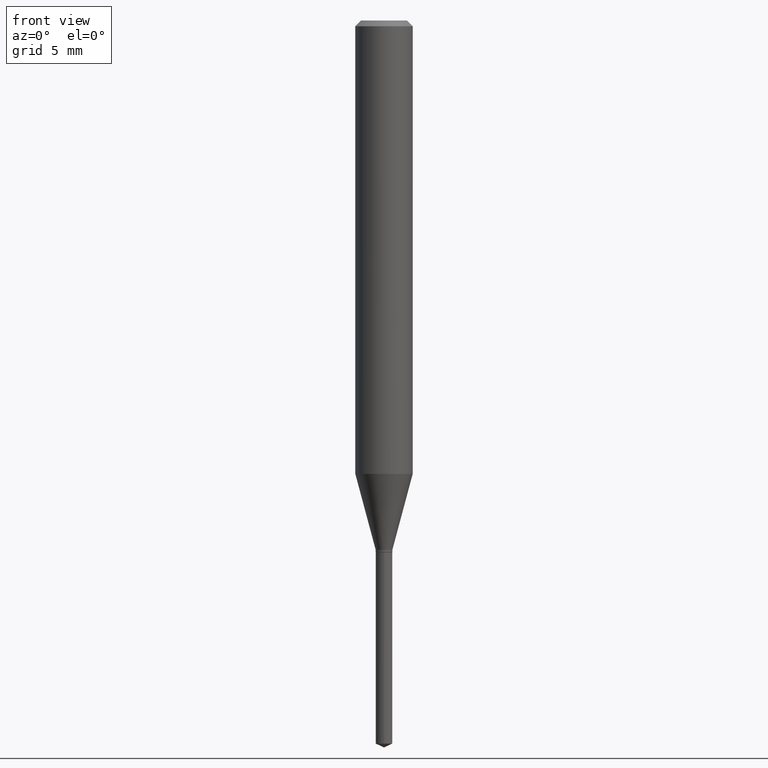
[diagram: clean part render]
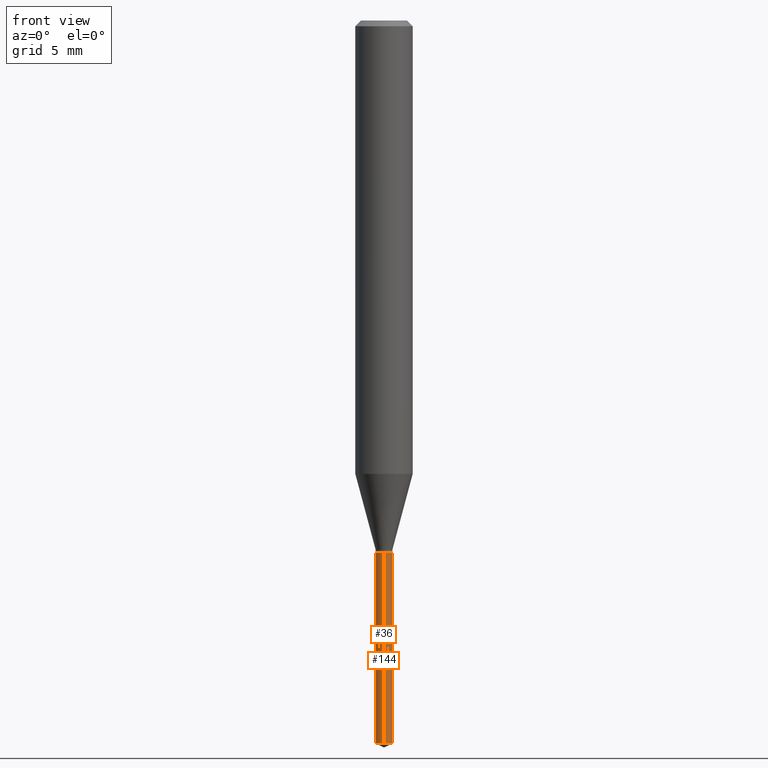
[diagram: same view with one multi-face feature highlighted, each face labeled with its STEP entity id]
A machine part, front view. The highlighted faces form ONE feature: a constant-radius fillet chain: 2 tangent blend faces with common blend radius 0.4356 mm. The faces share edges in the B-rep.
Their STEP definitions:
[1] entity #144 (Cylinder):
#1 = CARTESIAN_POINT ( 'NONE',  ( 1.218580791828935333E-16, 0.01714999999999479788, -1.488102823662641683 ) ) ;
#19 = CARTESIAN_POINT ( 'NONE',  ( 1.218580791828839191E-16, 0.01714999999999617525, -1.094499999999999806 ) ) ;
#27 = LINE ( 'NONE', #195, #379 ) ;
#30 = CIRCLE ( 'NONE', #417, 0.01714999999999999858 ) ;
#51 = ORIENTED_EDGE ( 'NONE', *, *, #216, .F. ) ;
#64 = EDGE_LOOP ( 'NONE', ( #290, #275, #51, #363 ) ) ;
#71 = FACE_OUTER_BOUND ( 'NONE', #64, .T. ) ;
#89 = VERTEX_POINT ( 'NONE', #187 ) ;
#111 = CARTESIAN_POINT ( 'NONE',  ( 2.676565608369631794E-29, -3.821426325363822773E-15, -1.094499999999999806 ) ) ;
#131 = AXIS2_PLACEMENT_3D ( 'NONE', #305, #267, #415 ) ;
#136 = EDGE_CURVE ( 'NONE', #470, #244, #27, .T. ) ;
#139 = AXIS2_PLACEMENT_3D ( 'NONE', #111, #228, #484 ) ;
#144 = ADVANCED_FACE ( 'NONE', ( #71 ), #153, .T. ) ;
#153 = CYLINDRICAL_SURFACE ( 'NONE', #139, 0.01714999999999999858 ) ;
#187 = CARTESIAN_POINT ( 'NONE',  ( 1.218580791828936073E-16, 0.01714999999999617525, -1.094499999999999806 ) ) ;
#195 = CARTESIAN_POINT ( 'NONE',  ( -1.197578099222926869E-16, -0.01715000000000382191, -1.094499999999999806 ) ) ;
#216 = EDGE_CURVE ( 'NONE', #244, #89, #239, .T. ) ;
#228 = DIRECTION ( 'NONE',  ( -2.445460715294871217E-29, 3.491492925458510144E-15, 1.000000000000000000 ) ) ;
#239 = CIRCLE ( 'NONE', #131, 0.01714999999999999858 ) ;
#244 = VERTEX_POINT ( 'NONE', #422 ) ;
#254 = VERTEX_POINT ( 'NONE', #1 ) ;
#256 = LINE ( 'NONE', #19, #319 ) ;
#267 = DIRECTION ( 'NONE',  ( -2.445460715294871217E-29, 3.491492925458510144E-15, 1.000000000000000000 ) ) ;
#275 = ORIENTED_EDGE ( 'NONE', *, *, #423, .T. ) ;
#290 = ORIENTED_EDGE ( 'NONE', *, *, #365, .T. ) ;
#305 = CARTESIAN_POINT ( 'NONE',  ( 2.676565608369631794E-29, -3.821426325363822773E-15, -1.094499999999999806 ) ) ;
#319 = VECTOR ( 'NONE', #399, 39.37007874015748143 ) ;
#339 = DIRECTION ( 'NONE',  ( -2.445460715294871217E-29, 3.491492925458510144E-15, 1.000000000000000000 ) ) ;
#358 = CARTESIAN_POINT ( 'NONE',  ( 3.639105851065756333E-29, -5.195687799622430095E-15, -1.488102823662641683 ) ) ;
#363 = ORIENTED_EDGE ( 'NONE', *, *, #136, .F. ) ;
#365 = EDGE_CURVE ( 'NONE', #470, #254, #30, .T. ) ;
#379 = VECTOR ( 'NONE', #339, 39.37007874015748143 ) ;
#388 = DIRECTION ( 'NONE',  ( -2.445460715294871217E-29, 3.491492925458510144E-15, 1.000000000000000000 ) ) ;
#399 = DIRECTION ( 'NONE',  ( -2.445460715294871217E-29, 3.491492925458510144E-15, 1.000000000000000000 ) ) ;
#415 = DIRECTION ( 'NONE',  ( -6.982962677686266711E-15, -1.000000000000000000, 0.000000000000000000 ) ) ;
#417 = AXIS2_PLACEMENT_3D ( 'NONE', #358, #388, #457 ) ;
#422 = CARTESIAN_POINT ( 'NONE',  ( -1.197578099222926869E-16, -0.01715000000000382191, -1.094499999999999806 ) ) ;
#423 = EDGE_CURVE ( 'NONE', #254, #89, #256, .T. ) ;
#457 = DIRECTION ( 'NONE',  ( -6.982962677686266711E-15, -1.000000000000000000, 0.000000000000000000 ) ) ;
#470 = VERTEX_POINT ( 'NONE', #476 ) ;
#476 = CARTESIAN_POINT ( 'NONE',  ( -1.197578099222830234E-16, -0.01715000000000518887, -1.488102823662641683 ) ) ;
#484 = DIRECTION ( 'NONE',  ( -6.982962677686266711E-15, -1.000000000000000000, 0.000000000000000000 ) ) ;
[2] entity #36 (Cylinder):
#1 = CARTESIAN_POINT ( 'NONE',  ( 1.218580791828935333E-16, 0.01714999999999479788, -1.488102823662641683 ) ) ;
#19 = CARTESIAN_POINT ( 'NONE',  ( 1.218580791828839191E-16, 0.01714999999999617525, -1.094499999999999806 ) ) ;
#22 = CYLINDRICAL_SURFACE ( 'NONE', #237, 0.01714999999999999858 ) ;
#27 = LINE ( 'NONE', #195, #379 ) ;
#28 = EDGE_CURVE ( 'NONE', #254, #470, #449, .T. ) ;
#36 = ADVANCED_FACE ( 'NONE', ( #141 ), #22, .T. ) ;
#37 = DIRECTION ( 'NONE',  ( -2.445460715294871217E-29, 3.491492925458510144E-15, 1.000000000000000000 ) ) ;
#89 = VERTEX_POINT ( 'NONE', #187 ) ;
#99 = DIRECTION ( 'NONE',  ( -2.445460715294871217E-29, 3.491492925458510144E-15, 1.000000000000000000 ) ) ;
#107 = CARTESIAN_POINT ( 'NONE',  ( 2.676565608369631794E-29, -3.821426325363822773E-15, -1.094499999999999806 ) ) ;
#136 = EDGE_CURVE ( 'NONE', #470, #244, #27, .T. ) ;
#141 = FACE_OUTER_BOUND ( 'NONE', #257, .T. ) ;
#174 = CARTESIAN_POINT ( 'NONE',  ( 3.639105851065756333E-29, -5.195687799622430095E-15, -1.488102823662641683 ) ) ;
#183 = DIRECTION ( 'NONE',  ( -6.982962677686266711E-15, -1.000000000000000000, 0.000000000000000000 ) ) ;
#187 = CARTESIAN_POINT ( 'NONE',  ( 1.218580791828936073E-16, 0.01714999999999617525, -1.094499999999999806 ) ) ;
#193 = AXIS2_PLACEMENT_3D ( 'NONE', #236, #37, #381 ) ;
#195 = CARTESIAN_POINT ( 'NONE',  ( -1.197578099222926869E-16, -0.01715000000000382191, -1.094499999999999806 ) ) ;
#219 = DIRECTION ( 'NONE',  ( -6.982962677686266711E-15, -1.000000000000000000, 0.000000000000000000 ) ) ;
#236 = CARTESIAN_POINT ( 'NONE',  ( 2.676565608369631794E-29, -3.821426325363822773E-15, -1.094499999999999806 ) ) ;
#237 = AXIS2_PLACEMENT_3D ( 'NONE', #107, #99, #183 ) ;
#244 = VERTEX_POINT ( 'NONE', #422 ) ;
#252 = EDGE_CURVE ( 'NONE', #89, #244, #474, .T. ) ;
#254 = VERTEX_POINT ( 'NONE', #1 ) ;
#256 = LINE ( 'NONE', #19, #319 ) ;
#257 = EDGE_LOOP ( 'NONE', ( #427, #392, #400, #349 ) ) ;
#319 = VECTOR ( 'NONE', #399, 39.37007874015748143 ) ;
#339 = DIRECTION ( 'NONE',  ( -2.445460715294871217E-29, 3.491492925458510144E-15, 1.000000000000000000 ) ) ;
#349 = ORIENTED_EDGE ( 'NONE', *, *, #252, .F. ) ;
#379 = VECTOR ( 'NONE', #339, 39.37007874015748143 ) ;
#381 = DIRECTION ( 'NONE',  ( -6.982962677686266711E-15, -1.000000000000000000, 0.000000000000000000 ) ) ;
#392 = ORIENTED_EDGE ( 'NONE', *, *, #28, .T. ) ;
#399 = DIRECTION ( 'NONE',  ( -2.445460715294871217E-29, 3.491492925458510144E-15, 1.000000000000000000 ) ) ;
#400 = ORIENTED_EDGE ( 'NONE', *, *, #136, .T. ) ;
#402 = DIRECTION ( 'NONE',  ( -2.445460715294871217E-29, 3.491492925458510144E-15, 1.000000000000000000 ) ) ;
#406 = AXIS2_PLACEMENT_3D ( 'NONE', #174, #402, #219 ) ;
#422 = CARTESIAN_POINT ( 'NONE',  ( -1.197578099222926869E-16, -0.01715000000000382191, -1.094499999999999806 ) ) ;
#423 = EDGE_CURVE ( 'NONE', #254, #89, #256, .T. ) ;
#427 = ORIENTED_EDGE ( 'NONE', *, *, #423, .F. ) ;
#449 = CIRCLE ( 'NONE', #406, 0.01714999999999999858 ) ;
#470 = VERTEX_POINT ( 'NONE', #476 ) ;
#474 = CIRCLE ( 'NONE', #193, 0.01714999999999999858 ) ;
#476 = CARTESIAN_POINT ( 'NONE',  ( -1.197578099222830234E-16, -0.01715000000000518887, -1.488102823662641683 ) ) ;